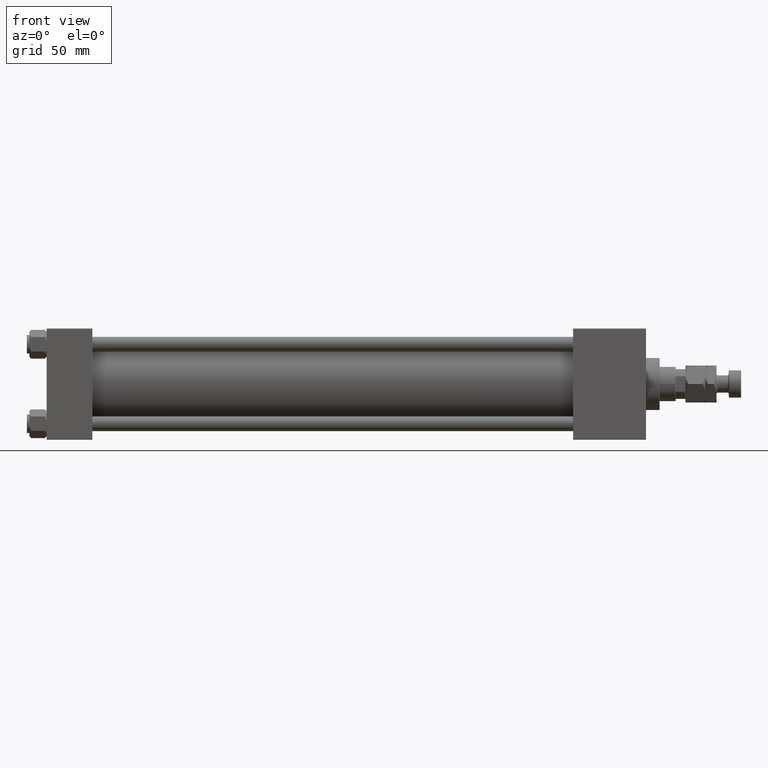
[diagram: clean part render]
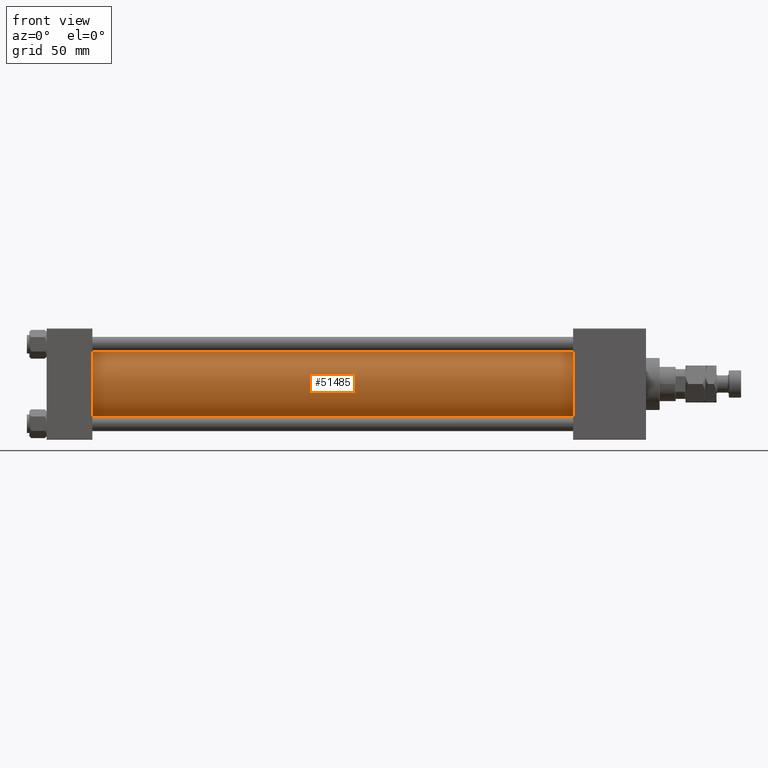
[diagram: same view with one face highlighted and labeled with its STEP entity id]
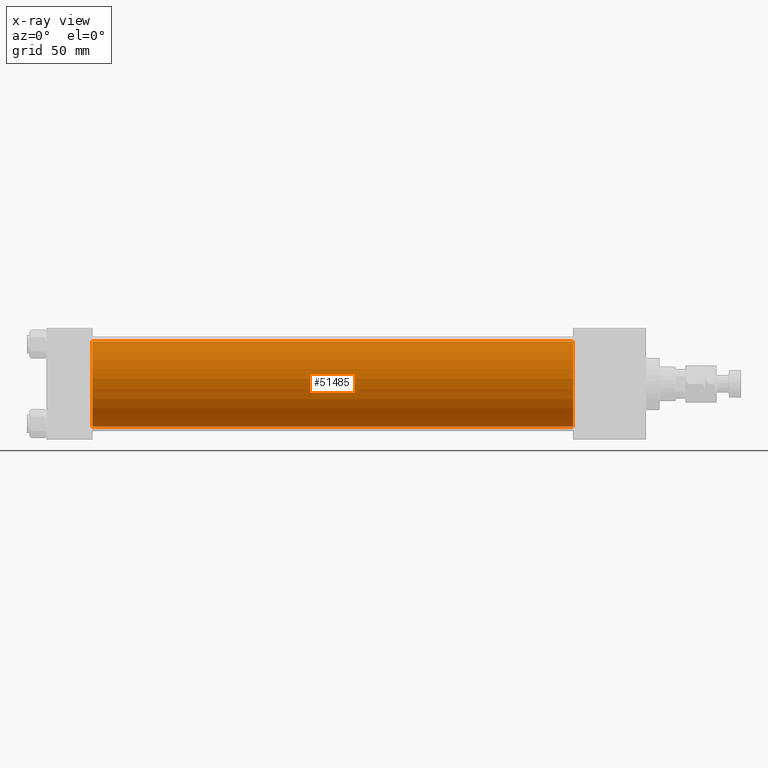
[diagram: x-ray of the same camera — body ghosted, the highlighted face saturated]
A machine part, front view. The second image highlights one B-rep face of the part: STEP entity #51485.
The next image is the same camera in x-ray: the body ghosted, the highlighted face saturated — about 0% of this face is hidden behind the body in this view.
In plain terms, the highlighted cylindrical surface (partial cylindrical patch) has radius 34.5 mm, axis along (-1, -0, -0).
Its self-contained STEP definition (entity closure, byte-faithful):
#2799 = CYLINDRICAL_SURFACE ( 'NONE', #15767, 34.50000000000000000 ) ;
#3319 = CARTESIAN_POINT ( 'NONE',  ( 426.0000000000000000, -2.602085213965210642E-15, 34.50000000000000000 ) ) ;
#6311 = EDGE_CURVE ( 'NONE', #49202, #45985, #33572, .T. ) ;
#6756 = DIRECTION ( 'NONE',  ( -1.000000000000000000, -0.000000000000000000, -0.000000000000000000 ) ) ;
#8148 = CARTESIAN_POINT ( 'NONE',  ( 36.99999999999997868, 1.622946243093158675E-15, -34.50000000000000000 ) ) ;
#8303 = ORIENTED_EDGE ( 'NONE', *, *, #50832, .F. ) ;
#8311 = DIRECTION ( 'NONE',  ( -1.000000000000000000, -0.000000000000000000, -0.000000000000000000 ) ) ;
#8612 = EDGE_LOOP ( 'NONE', ( #8303, #20281, #27555, #9027 ) ) ;
#9027 = ORIENTED_EDGE ( 'NONE', *, *, #31543, .T. ) ;
#11155 = DIRECTION ( 'NONE',  ( 0.000000000000000000, 0.000000000000000000, -1.000000000000000000 ) ) ;
#12858 = CIRCLE ( 'NONE', #16200, 34.50000000000000000 ) ;
#13868 = CIRCLE ( 'NONE', #44947, 34.50000000000000000 ) ;
#15767 = AXIS2_PLACEMENT_3D ( 'NONE', #42830, #6756, #18877 ) ;
#16087 = CARTESIAN_POINT ( 'NONE',  ( 36.99999999999997868, -2.602085213965210642E-15, 0.000000000000000000 ) ) ;
#16200 = AXIS2_PLACEMENT_3D ( 'NONE', #16087, #31613, #39768 ) ;
#18877 = DIRECTION ( 'NONE',  ( 0.000000000000000000, 0.000000000000000000, 1.000000000000000000 ) ) ;
#20281 = ORIENTED_EDGE ( 'NONE', *, *, #44609, .F. ) ;
#24095 = DIRECTION ( 'NONE',  ( -1.000000000000000000, -0.000000000000000000, -0.000000000000000000 ) ) ;
#26766 = FACE_OUTER_BOUND ( 'NONE', #8612, .T. ) ;
#27555 = ORIENTED_EDGE ( 'NONE', *, *, #6311, .T. ) ;
#31543 = EDGE_CURVE ( 'NONE', #45985, #37066, #12858, .T. ) ;
#31613 = DIRECTION ( 'NONE',  ( 1.000000000000000000, -0.000000000000000000, 0.000000000000000000 ) ) ;
#32999 = VERTEX_POINT ( 'NONE', #46551 ) ;
#33572 = LINE ( 'NONE', #44387, #39208 ) ;
#36447 = CARTESIAN_POINT ( 'NONE',  ( 426.0000000000000000, 1.622946243093158675E-15, -34.50000000000000000 ) ) ;
#36739 = VECTOR ( 'NONE', #24095, 1000.000000000000000 ) ;
#37066 = VERTEX_POINT ( 'NONE', #8148 ) ;
#39208 = VECTOR ( 'NONE', #8311, 1000.000000000000000 ) ;
#39768 = DIRECTION ( 'NONE',  ( 0.000000000000000000, 0.000000000000000000, 1.000000000000000000 ) ) ;
#42830 = CARTESIAN_POINT ( 'NONE',  ( 426.0000000000000000, -2.602085213965210642E-15, 0.000000000000000000 ) ) ;
#44334 = DIRECTION ( 'NONE',  ( 1.000000000000000000, 0.000000000000000000, 0.000000000000000000 ) ) ;
#44387 = CARTESIAN_POINT ( 'NONE',  ( 426.0000000000000000, -2.602085213965210642E-15, 34.50000000000000000 ) ) ;
#44609 = EDGE_CURVE ( 'NONE', #49202, #32999, #13868, .T. ) ;
#44947 = AXIS2_PLACEMENT_3D ( 'NONE', #47490, #44334, #11155 ) ;
#45985 = VERTEX_POINT ( 'NONE', #48174 ) ;
#46551 = CARTESIAN_POINT ( 'NONE',  ( 426.0000000000000000, 1.622946243093158675E-15, -34.50000000000000000 ) ) ;
#47490 = CARTESIAN_POINT ( 'NONE',  ( 426.0000000000000000, -2.602085213965210642E-15, 0.000000000000000000 ) ) ;
#48174 = CARTESIAN_POINT ( 'NONE',  ( 36.99999999999997868, -2.602085213965210642E-15, 34.50000000000000000 ) ) ;
#49202 = VERTEX_POINT ( 'NONE', #3319 ) ;
#49564 = LINE ( 'NONE', #36447, #36739 ) ;
#50832 = EDGE_CURVE ( 'NONE', #32999, #37066, #49564, .T. ) ;
#51485 = ADVANCED_FACE ( 'NONE', ( #26766 ), #2799, .T. ) ;